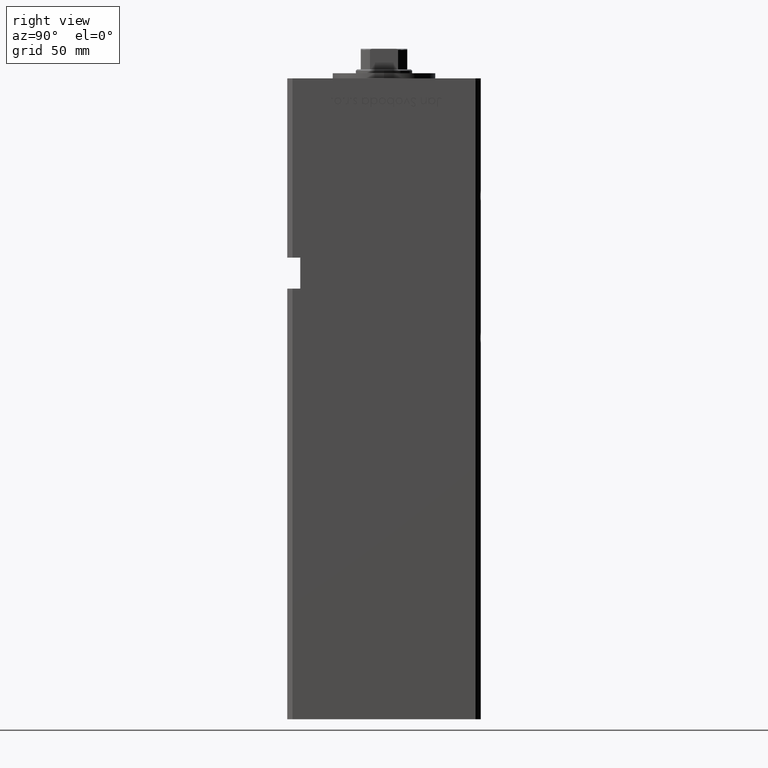
[diagram: clean part render]
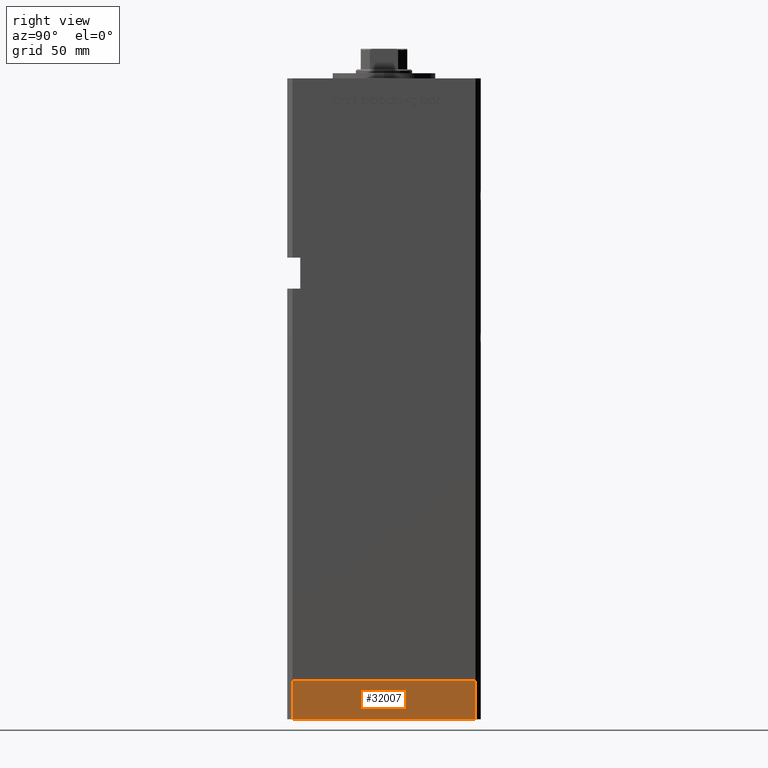
[diagram: same view with one face highlighted and labeled with its STEP entity id]
A machine part, right view. The second image highlights one B-rep face of the part: STEP entity #32007.
In plain terms, the highlighted planar face has unit normal (1, 0, 0).
Its self-contained STEP definition (entity closure, byte-faithful):
#929 = FACE_OUTER_BOUND ( 'NONE', #50688, .T. ) ;
#2661 = CARTESIAN_POINT ( 'NONE',  ( -42.50000000000000000, -35.50000000000000711, 0.000000000000000000 ) ) ;
#2876 = EDGE_CURVE ( 'NONE', #32622, #11871, #50578, .T. ) ;
#2967 = LINE ( 'NONE', #43812, #20550 ) ;
#3277 = AXIS2_PLACEMENT_3D ( 'NONE', #42067, #21659, #38044 ) ;
#10971 = CARTESIAN_POINT ( 'NONE',  ( -42.50000000000000711, 35.49999999999997158, 0.000000000000000000 ) ) ;
#11499 = EDGE_CURVE ( 'NONE', #26685, #30581, #15855, .T. ) ;
#11871 = VERTEX_POINT ( 'NONE', #10971 ) ;
#14510 = ORIENTED_EDGE ( 'NONE', *, *, #2876, .F. ) ;
#15855 = LINE ( 'NONE', #32265, #16533 ) ;
#16533 = VECTOR ( 'NONE', #40044, 1000.000000000000000 ) ;
#19378 = DIRECTION ( 'NONE',  ( 9.773090005503140331E-17, -1.000000000000000000, 0.000000000000000000 ) ) ;
#20550 = VECTOR ( 'NONE', #19378, 1000.000000000000000 ) ;
#21659 = DIRECTION ( 'NONE',  ( -1.000000000000000000, -9.773090005503140331E-17, 0.000000000000000000 ) ) ;
#24669 = CARTESIAN_POINT ( 'NONE',  ( -42.50000000000000711, 35.49999999999997158, -15.00000000000000000 ) ) ;
#26685 = VERTEX_POINT ( 'NONE', #27122 ) ;
#27122 = CARTESIAN_POINT ( 'NONE',  ( -42.50000000000000000, -35.50000000000000711, -15.00000000000000000 ) ) ;
#29738 = PLANE ( 'NONE',  #3277 ) ;
#30028 = CARTESIAN_POINT ( 'NONE',  ( -42.50000000000000711, 35.49999999999997158, 0.000000000000000000 ) ) ;
#30186 = CARTESIAN_POINT ( 'NONE',  ( -42.50000000000000711, 35.49999999999997158, -15.00000000000000000 ) ) ;
#30581 = VERTEX_POINT ( 'NONE', #2661 ) ;
#32007 = ADVANCED_FACE ( 'NONE', ( #929 ), #29738, .T. ) ;
#32265 = CARTESIAN_POINT ( 'NONE',  ( -42.50000000000000000, -35.50000000000000711, -15.00000000000000000 ) ) ;
#32622 = VERTEX_POINT ( 'NONE', #24669 ) ;
#33520 = DIRECTION ( 'NONE',  ( 9.773090005503140331E-17, -1.000000000000000000, 0.000000000000000000 ) ) ;
#33679 = DIRECTION ( 'NONE',  ( 0.000000000000000000, 0.000000000000000000, 1.000000000000000000 ) ) ;
#34052 = LINE ( 'NONE', #30028, #51683 ) ;
#38044 = DIRECTION ( 'NONE',  ( 9.773090005503140331E-17, -1.000000000000000000, 0.000000000000000000 ) ) ;
#39286 = EDGE_CURVE ( 'NONE', #32622, #26685, #2967, .T. ) ;
#40044 = DIRECTION ( 'NONE',  ( 0.000000000000000000, 0.000000000000000000, 1.000000000000000000 ) ) ;
#42067 = CARTESIAN_POINT ( 'NONE',  ( -42.50000000000000711, 35.49999999999997158, -15.00000000000000000 ) ) ;
#42209 = ORIENTED_EDGE ( 'NONE', *, *, #39286, .T. ) ;
#43812 = CARTESIAN_POINT ( 'NONE',  ( -42.50000000000000711, 35.49999999999997158, -15.00000000000000000 ) ) ;
#44189 = EDGE_CURVE ( 'NONE', #11871, #30581, #34052, .T. ) ;
#45888 = ORIENTED_EDGE ( 'NONE', *, *, #44189, .F. ) ;
#48215 = VECTOR ( 'NONE', #33679, 1000.000000000000000 ) ;
#50578 = LINE ( 'NONE', #30186, #48215 ) ;
#50688 = EDGE_LOOP ( 'NONE', ( #45888, #14510, #42209, #51771 ) ) ;
#51683 = VECTOR ( 'NONE', #33520, 1000.000000000000000 ) ;
#51771 = ORIENTED_EDGE ( 'NONE', *, *, #11499, .T. ) ;